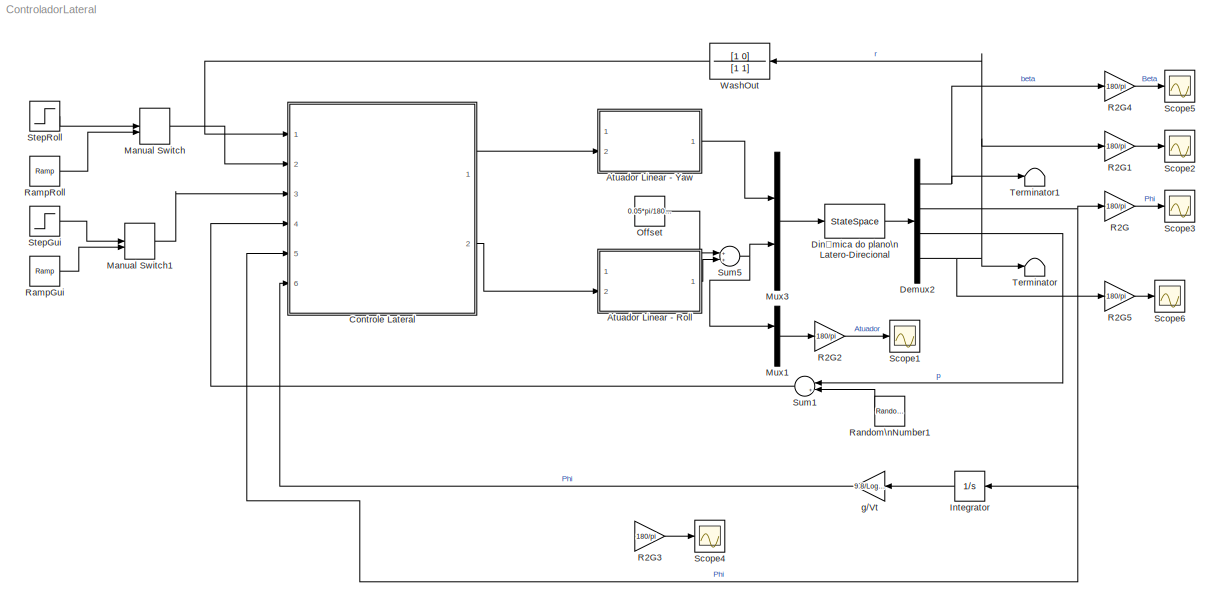
MODEL ControladorLateral
KIND model
CONFIG InitFcn = Alt = 2;\nVel =4;\nwa = 72;\nzetaA = 0.7;\nload('../../Ganhos/BV9_30_03/GanhosTanqueHalf')\nload('../../Dados_Input_Ganhos/BV9_30_03/sstanqueHalf_0')\n[n,d] = butter(2,15*2*pi,'s')\nF = tf(n,d);\nFd = c2d(F,0.01,'tustin');\n[num, dem] = tfdata(Fd);\nTa = 100;
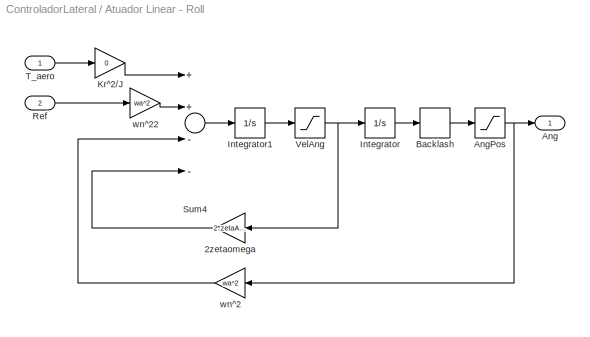
BLOCK [SubSystem] Atuador Linear - Roll
  FunctionWithSeparateData = off
  MaskHideContents = off
  MinAlgLoopOccurrences = off
  Opaque = off
  Ports = [2, 1]
  PropExecContextOutsideSubsystem = off
  RTWSystemCode = Auto
  RequestExecContextInheritance = off
  SID = 76
BLOCK [Gain] Atuador Linear - Roll/2zetaomega
  Gain = 2*zetaA*wa
  OutDataTypeStr = Inherit: Inherit via internal rule
  ParamDataTypeStr = Inherit: Inherit via internal rule
  SID = 79
  SaturateOnIntegerOverflow = off
BLOCK [Outport] Atuador Linear - Roll/Ang
  IconDisplay = Port number
  SID = 89
BLOCK [Saturate] Atuador Linear - Roll/AngPos
  InputPortMap = u0
  LowerLimit = -10*pi/180*10
  Ports = [1, 1]
  SID = 80
  UpperLimit = 10*pi/180*10
BLOCK [Backlash] Atuador Linear - Roll/Backlash
  BacklashWidth = 0.05*pi/180*0
  InputProcessing = Elements as channels (sample based)
  SID = 81
BLOCK [Integrator] Atuador Linear - Roll/Integrator
  Ports = [1, 1]
  SID = 82
BLOCK [Integrator] Atuador Linear - Roll/Integrator1
  Ports = [1, 1]
  SID = 83
BLOCK [Gain] Atuador Linear - Roll/Kr^2//J
  Gain = 0
  OutDataTypeStr = Inherit: Inherit via internal rule
  ParamDataTypeStr = Inherit: Inherit via internal rule
  SID = 84
  SaturateOnIntegerOverflow = off
BLOCK [Inport] Atuador Linear - Roll/Ref
  IconDisplay = Port number
  Port = 2
  SID = 78
BLOCK [Sum] Atuador Linear - Roll/Sum4
  InputSameDT = off
  Inputs = ++--
  OutDataTypeStr = Inherit: Inherit via internal rule
  Ports = [4, 1]
  SID = 85
  SaturateOnIntegerOverflow = off
BLOCK [Inport] Atuador Linear - Roll/T_aero
  IconDisplay = Port number
  SID = 77
BLOCK [Saturate] Atuador Linear - Roll/VelAng
  InputPortMap = u0
  LowerLimit = -140*pi/180*10
  Ports = [1, 1]
  SID = 86
  UpperLimit = 140*pi/180*10
BLOCK [Gain] Atuador Linear - Roll/wn^2
  Gain = wa^2
  OutDataTypeStr = Inherit: Inherit via internal rule
  ParamDataTypeStr = Inherit: Inherit via internal rule
  SID = 87
  SaturateOnIntegerOverflow = off
BLOCK [Gain] Atuador Linear - Roll/wn^22
  Gain = wa^2
  OutDataTypeStr = Inherit: Inherit via internal rule
  ParamDataTypeStr = Inherit: Inherit via internal rule
  SID = 88
  SaturateOnIntegerOverflow = off
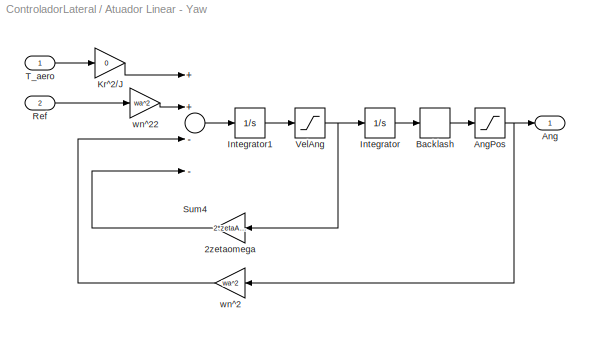
BLOCK [SubSystem] Atuador Linear - Yaw
  FunctionWithSeparateData = off
  MaskHideContents = off
  MinAlgLoopOccurrences = off
  Opaque = off
  Ports = [2, 1]
  PropExecContextOutsideSubsystem = off
  RTWSystemCode = Auto
  RequestExecContextInheritance = off
  SID = 110
BLOCK [Gain] Atuador Linear - Yaw/2zetaomega
  Gain = 2*zetaA*wa
  OutDataTypeStr = Inherit: Inherit via internal rule
  ParamDataTypeStr = Inherit: Inherit via internal rule
  SID = 113
  SaturateOnIntegerOverflow = off
BLOCK [Outport] Atuador Linear - Yaw/Ang
  IconDisplay = Port number
  SID = 123
BLOCK [Saturate] Atuador Linear - Yaw/AngPos
  InputPortMap = u0
  LowerLimit = -10*pi/180
  Ports = [1, 1]
  SID = 114
  UpperLimit = 10*pi/180
BLOCK [Backlash] Atuador Linear - Yaw/Backlash
  BacklashWidth = 0.05*pi/180*0
  InputProcessing = Elements as channels (sample based)
  SID = 115
BLOCK [Integrator] Atuador Linear - Yaw/Integrator
  Ports = [1, 1]
  SID = 116
BLOCK [Integrator] Atuador Linear - Yaw/Integrator1
  Ports = [1, 1]
  SID = 117
BLOCK [Gain] Atuador Linear - Yaw/Kr^2//J
  Gain = 0
  OutDataTypeStr = Inherit: Inherit via internal rule
  ParamDataTypeStr = Inherit: Inherit via internal rule
  SID = 118
  SaturateOnIntegerOverflow = off
BLOCK [Inport] Atuador Linear - Yaw/Ref
  IconDisplay = Port number
  Port = 2
  SID = 112
BLOCK [Sum] Atuador Linear - Yaw/Sum4
  InputSameDT = off
  Inputs = ++--
  OutDataTypeStr = Inherit: Inherit via internal rule
  Ports = [4, 1]
  SID = 119
  SaturateOnIntegerOverflow = off
BLOCK [Inport] Atuador Linear - Yaw/T_aero
  IconDisplay = Port number
  SID = 111
BLOCK [Saturate] Atuador Linear - Yaw/VelAng
  InputPortMap = u0
  LowerLimit = -140*pi/180
  Ports = [1, 1]
  SID = 120
  UpperLimit = 140*pi/180
BLOCK [Gain] Atuador Linear - Yaw/wn^2
  Gain = wa^2
  OutDataTypeStr = Inherit: Inherit via internal rule
  ParamDataTypeStr = Inherit: Inherit via internal rule
  SID = 121
  SaturateOnIntegerOverflow = off
BLOCK [Gain] Atuador Linear - Yaw/wn^22
  Gain = wa^2
  OutDataTypeStr = Inherit: Inherit via internal rule
  ParamDataTypeStr = Inherit: Inherit via internal rule
  SID = 122
  SaturateOnIntegerOverflow = off
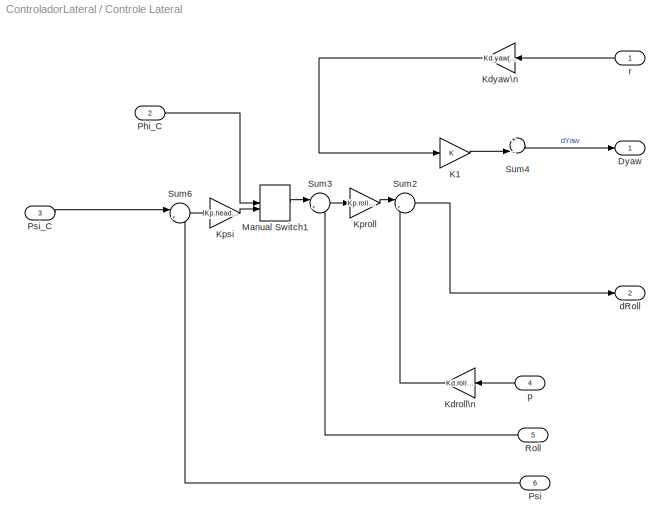
BLOCK [SubSystem] Controle Lateral
  FunctionWithSeparateData = off
  MaskHideContents = off
  MinAlgLoopOccurrences = off
  Opaque = off
  Ports = [6, 2]
  PropExecContextOutsideSubsystem = off
  RTWSystemCode = Auto
  RequestExecContextInheritance = off
  SID = 156
BLOCK [Outport] Controle Lateral/Dyaw
  IconDisplay = Port number
  SID = 166
BLOCK [Gain] Controle Lateral/K1
  OutDataTypeStr = Inherit: Inherit via internal rule
  ParamDataTypeStr = Inherit: Inherit via internal rule
  SID = 155
  SaturateOnIntegerOverflow = off
BLOCK [Gain] Controle Lateral/Kdroll\n
  Gain = Kd.roll(Alt,Vel)*1
  OutDataTypeStr = Inherit: Inherit via internal rule
  ParamDataTypeStr = Inherit: Inherit via internal rule
  SID = 10
  SaturateOnIntegerOverflow = off
BLOCK [Gain] Controle Lateral/Kdyaw\n
  Gain = Kd.yaw(Alt,Vel)
  OutDataTypeStr = Inherit: Inherit via internal rule
  ParamDataTypeStr = Inherit: Inherit via internal rule
  SID = 94
  SaturateOnIntegerOverflow = off
BLOCK [Gain] Controle Lateral/Kproll
  Gain = Kp.roll(Alt,Vel)*1
  OutDataTypeStr = Inherit: Inherit via internal rule
  ParamDataTypeStr = Inherit: Inherit via internal rule
  SID = 13
  SaturateOnIntegerOverflow = off
BLOCK [Gain] Controle Lateral/Kpsi
  Gain = Kp.heading(Alt,Vel)
  OutDataTypeStr = Inherit: Inherit via internal rule
  ParamDataTypeStr = Inherit: Inherit via internal rule
  SID = 139
  SaturateOnIntegerOverflow = off
BLOCK [ManualSwitch] Controle Lateral/Manual Switch1
  SID = 136
BLOCK [Inport] Controle Lateral/Phi_C
  IconDisplay = Port number
  Port = 2
  SID = 158
BLOCK [Inport] Controle Lateral/Psi
  IconDisplay = Port number
  Port = 6
  SID = 164
BLOCK [Inport] Controle Lateral/Psi_C
  IconDisplay = Port number
  Port = 3
  SID = 160
BLOCK [Inport] Controle Lateral/Roll
  IconDisplay = Port number
  Port = 5
  SID = 163
BLOCK [Sum] Controle Lateral/Sum2
  IconShape = round
  InputSameDT = off
  Inputs = |+-
  OutDataTypeStr = Inherit: Inherit via internal rule
  Ports = [2, 1]
  SID = 39
  SaturateOnIntegerOverflow = off
BLOCK [Sum] Controle Lateral/Sum3
  IconShape = round
  InputSameDT = off
  Inputs = |+-
  OutDataTypeStr = Inherit: Inherit via internal rule
  Ports = [2, 1]
  SID = 40
  SaturateOnIntegerOverflow = off
BLOCK [Sum] Controle Lateral/Sum4
  InputSameDT = off
  Inputs = +-
  OutDataTypeStr = Inherit: Inherit via internal rule
  Ports = [2, 1]
  SID = 95
  SaturateOnIntegerOverflow = off
BLOCK [Sum] Controle Lateral/Sum6
  IconShape = round
  InputSameDT = off
  Inputs = |+-
  OutDataTypeStr = Inherit: Inherit via internal rule
  Ports = [2, 1]
  SID = 138
  SaturateOnIntegerOverflow = off
BLOCK [Outport] Controle Lateral/dRoll
  IconDisplay = Port number
  Port = 2
  SID = 168
BLOCK [Inport] Controle Lateral/p
  IconDisplay = Port number
  Port = 4
  SID = 162
BLOCK [Inport] Controle Lateral/r
  IconDisplay = Port number
  SID = 157
BLOCK [Demux] Demux2
  DisplayOption = bar
  Ports = [1, 4]
  SID = 5
BLOCK [StateSpace] Dinâmica do plano\n Latero-Direcional
  A = Plano_Lat(Alt,Vel).A
  B = Plano_Lat(Alt,Vel).B
  C = eye(4)
  D = zeros(4,2)
  Ports = [1, 1]
  SID = 33
  X0 = [0 0 0 0*10*pi/180]
BLOCK [Integrator] Integrator
  Ports = [1, 1]
  SID = 134
BLOCK [ManualSwitch] Manual Switch
  SID = 125
BLOCK [ManualSwitch] Manual Switch1
  SID = 171
BLOCK [Mux] Mux1
  DisplayOption = bar
  Inputs = 2
  Ports = [2, 1]
  SID = 91
BLOCK [Mux] Mux3
  DisplayOption = bar
  Inputs = 2
  Ports = [2, 1]
  SID = 17
BLOCK [Constant] Offset
  SID = 130
  Value = 0.05*pi/180*0
BLOCK [Gain] R2G
  Gain = 180/pi
  OutDataTypeStr = Inherit: Inherit via internal rule
  ParamDataTypeStr = Inherit: Inherit via internal rule
  SID = 59
  SaturateOnIntegerOverflow = off
BLOCK [Gain] R2G1
  Gain = 180/pi
  OutDataTypeStr = Inherit: Inherit via internal rule
  ParamDataTypeStr = Inherit: Inherit via internal rule
  SID = 93
  SaturateOnIntegerOverflow = off
BLOCK [Gain] R2G2
  Gain = 180/pi
  OutDataTypeStr = Inherit: Inherit via internal rule
  ParamDataTypeStr = Inherit: Inherit via internal rule
  SID = 126
  SaturateOnIntegerOverflow = off
BLOCK [Gain] R2G3
  Gain = 180/pi
  OutDataTypeStr = Inherit: Inherit via internal rule
  ParamDataTypeStr = Inherit: Inherit via internal rule
  SID = 140
  SaturateOnIntegerOverflow = off
BLOCK [Gain] R2G4
  Gain = 180/pi
  OutDataTypeStr = Inherit: Inherit via internal rule
  ParamDataTypeStr = Inherit: Inherit via internal rule
  SID = 149
  SaturateOnIntegerOverflow = off
BLOCK [Gain] R2G5
  Gain = 180/pi
  OutDataTypeStr = Inherit: Inherit via internal rule
  ParamDataTypeStr = Inherit: Inherit via internal rule
  SID = 153
  SaturateOnIntegerOverflow = off
BLOCK [Reference] RampGui  REF=simulink/Sources/Ramp
  Ports = [0, 1]
  SID = 144
  SourceBlock = simulink/Sources/Ramp
  SourceType = Ramp
  VectorParams1D = on
  X0 = 0
  slope = 2*pi/180
  start = 0
BLOCK [Reference] RampRoll  REF=simulink/Sources/Ramp
  Ports = [0, 1]
  SID = 124
  SourceBlock = simulink/Sources/Ramp
  SourceType = Ramp
  VectorParams1D = on
  X0 = 0
  slope = 10*pi/180
  start = 0
BLOCK [RandomNumber] Random\nNumber1
  SID = 21
  SampleTime = 0.005
  Variance = (0.002)^2*0
BLOCK [Scope] Scope1
  DataFormat = StructureWithTime
  Floating = off
  NumInputPorts = 1
  Ports = [1]
  SID = 90
  SampleTime = 0
  ShowLegends = off
  ZoomMode = xonly
BLOCK [Scope] Scope2
  DataFormat = StructureWithTime
  Floating = off
  NumInputPorts = 1
  Ports = [1]
  SID = 92
  SampleTime = 0
  SaveName = ScopeData1
  ShowLegends = off
  ZoomMode = xonly
BLOCK [Scope] Scope3
  DataFormat = StructureWithTime
  Floating = off
  NumInputPorts = 1
  Ports = [1]
  SID = 26
  SampleTime = 0
  SaveName = ScopeData3
  ShowLegends = off
  ZoomMode = yonly
BLOCK [Scope] Scope4
  DataFormat = StructureWithTime
  Floating = off
  NumInputPorts = 1
  Ports = [1]
  SID = 141
  SampleTime = 0
  SaveName = ScopeData2
  ShowLegends = off
  ZoomMode = yonly
BLOCK [Scope] Scope5
  DataFormat = StructureWithTime
  Floating = off
  NumInputPorts = 1
  Ports = [1]
  SID = 150
  SampleTime = 0
  SaveName = ScopeData4
  ShowLegends = off
  ZoomMode = xonly
BLOCK [Scope] Scope6
  DataFormat = StructureWithTime
  Floating = off
  NumInputPorts = 1
  Ports = [1]
  SID = 152
  SampleTime = 0
  SaveName = ScopeData5
  ShowLegends = off
  ZoomMode = yonly
BLOCK [Step] StepGui
  After = 5*pi/180*0
  SID = 137
  SampleTime = 0
  Time = 0
BLOCK [Step] StepRoll
  After = 10*pi/180*1
  SID = 35
  SampleTime = 0
  Time = 0
BLOCK [Sum] Sum1
  IconShape = round
  InputSameDT = off
  Inputs = |++
  OutDataTypeStr = Inherit: Inherit via internal rule
  Ports = [2, 1]
  SID = 55
  SaturateOnIntegerOverflow = off
BLOCK [Sum] Sum5
  InputSameDT = off
  OutDataTypeStr = Inherit: Inherit via internal rule
  Ports = [2, 1]
  SID = 129
  SaturateOnIntegerOverflow = off
BLOCK [Terminator] Terminator
  SID = 56
BLOCK [Terminator] Terminator1
  SID = 57
BLOCK [TransferFcn] WashOut
  Commented = through
  Denominator = [1 1]
  Numerator = [1 0]
  SID = 151
BLOCK [Gain] g//Vt
  Gain = 9.8/Log.TrimOptions.Vt(3)
  OutDataTypeStr = Inherit: Inherit via internal rule
  ParamDataTypeStr = Inherit: Inherit via internal rule
  SID = 135
  SaturateOnIntegerOverflow = off
LINE Atuador Linear - Roll/2zetaomega:1 -> Atuador Linear - Roll/Sum4:4
NET Atuador Linear - Roll/AngPos:1 -> Atuador Linear - Roll/Ang:1, Atuador Linear - Roll/wn^2:1
LINE Atuador Linear - Roll/Backlash:1 -> Atuador Linear - Roll/AngPos:1
LINE Atuador Linear - Roll/Integrator1:1 -> Atuador Linear - Roll/VelAng:1
LINE Atuador Linear - Roll/Integrator:1 -> Atuador Linear - Roll/Backlash:1
LINE Atuador Linear - Roll/Kr^2//J:1 -> Atuador Linear - Roll/Sum4:1
LINE Atuador Linear - Roll/Ref:1 -> Atuador Linear - Roll/wn^22:1
LINE Atuador Linear - Roll/Sum4:1 -> Atuador Linear - Roll/Integrator1:1
LINE Atuador Linear - Roll/T_aero:1 -> Atuador Linear - Roll/Kr^2//J:1
NET Atuador Linear - Roll/VelAng:1 -> Atuador Linear - Roll/2zetaomega:1, Atuador Linear - Roll/Integrator:1
LINE Atuador Linear - Roll/wn^22:1 -> Atuador Linear - Roll/Sum4:2
LINE Atuador Linear - Roll/wn^2:1 -> Atuador Linear - Roll/Sum4:3
LINE Atuador Linear - Roll:1 -> Sum5:2
LINE Atuador Linear - Yaw/2zetaomega:1 -> Atuador Linear - Yaw/Sum4:4
NET Atuador Linear - Yaw/AngPos:1 -> Atuador Linear - Yaw/Ang:1, Atuador Linear - Yaw/wn^2:1
LINE Atuador Linear - Yaw/Backlash:1 -> Atuador Linear - Yaw/AngPos:1
LINE Atuador Linear - Yaw/Integrator1:1 -> Atuador Linear - Yaw/VelAng:1
LINE Atuador Linear - Yaw/Integrator:1 -> Atuador Linear - Yaw/Backlash:1
LINE Atuador Linear - Yaw/Kr^2//J:1 -> Atuador Linear - Yaw/Sum4:1
LINE Atuador Linear - Yaw/Ref:1 -> Atuador Linear - Yaw/wn^22:1
LINE Atuador Linear - Yaw/Sum4:1 -> Atuador Linear - Yaw/Integrator1:1
LINE Atuador Linear - Yaw/T_aero:1 -> Atuador Linear - Yaw/Kr^2//J:1
NET Atuador Linear - Yaw/VelAng:1 -> Atuador Linear - Yaw/2zetaomega:1, Atuador Linear - Yaw/Integrator:1
LINE Atuador Linear - Yaw/wn^22:1 -> Atuador Linear - Yaw/Sum4:2
LINE Atuador Linear - Yaw/wn^2:1 -> Atuador Linear - Yaw/Sum4:3
LINE Atuador Linear - Yaw:1 -> Mux3:1
LINE Controle Lateral/K1:1 -> Controle Lateral/Sum4:2
LINE Controle Lateral/Kdroll\n:1 -> Controle Lateral/Sum2:2
LINE Controle Lateral/Kdyaw\n:1 -> Controle Lateral/K1:1
LINE Controle Lateral/Kproll:1 -> Controle Lateral/Sum2:1
LINE Controle Lateral/Kpsi:1 -> Controle Lateral/Manual Switch1:2
LINE Controle Lateral/Manual Switch1:1 -> Controle Lateral/Sum3:1
LINE Controle Lateral/Phi_C:1 -> Controle Lateral/Manual Switch1:1
LINE Controle Lateral/Psi:1 -> Controle Lateral/Sum6:2
LINE Controle Lateral/Psi_C:1 -> Controle Lateral/Sum6:1
LINE Controle Lateral/Roll:1 -> Controle Lateral/Sum3:2
LINE Controle Lateral/Sum2:1 -> Controle Lateral/dRoll:1
LINE Controle Lateral/Sum3:1 -> Controle Lateral/Kproll:1
LINE Controle Lateral/Sum4:1 -> Controle Lateral/Dyaw:1
LINE Controle Lateral/Sum6:1 -> Controle Lateral/Kpsi:1
LINE Controle Lateral/p:1 -> Controle Lateral/Kdroll\n:1
LINE Controle Lateral/r:1 -> Controle Lateral/Kdyaw\n:1
LINE Controle Lateral:1 -> Atuador Linear - Yaw:2
LINE Controle Lateral:2 -> Atuador Linear - Roll:2
NET Demux2:1 -> R2G4:1, Terminator1:1
NET Demux2:2 -> Controle Lateral:5, Integrator:1, R2G:1
LINE Demux2:3 -> Sum1:1
NET Demux2:4 -> R2G1:1, R2G5:1, Terminator:1, WashOut:1
LINE Dinâmica do plano\n Latero-Direcional:1 -> Demux2:1
LINE Integrator:1 -> g//Vt:1
LINE Manual Switch1:1 -> Controle Lateral:3
LINE Manual Switch:1 -> Controle Lateral:2
LINE Mux1:1 -> R2G2:1
LINE Mux3:1 -> Dinâmica do plano\n Latero-Direcional:1
LINE Offset:1 -> Sum5:1
LINE R2G1:1 -> Scope2:1
LINE R2G2:1 -> Scope1:1
LINE R2G3:1 -> Scope4:1
LINE R2G4:1 -> Scope5:1
LINE R2G5:1 -> Scope6:1
LINE R2G:1 -> Scope3:1
LINE RampGui:1 -> Manual Switch1:2
LINE RampRoll:1 -> Manual Switch:2
LINE Random\nNumber1:1 -> Sum1:2
LINE StepGui:1 -> Manual Switch1:1
LINE StepRoll:1 -> Manual Switch:1
LINE Sum1:1 -> Controle Lateral:4
NET Sum5:1 -> Mux1:1, Mux3:2
LINE WashOut:1 -> Controle Lateral:1
LINE g//Vt:1 -> Controle Lateral:6
note: NET lines group one-source signal fan-out (src -> all destinations, sorted); 1:1 wires keep LINE
